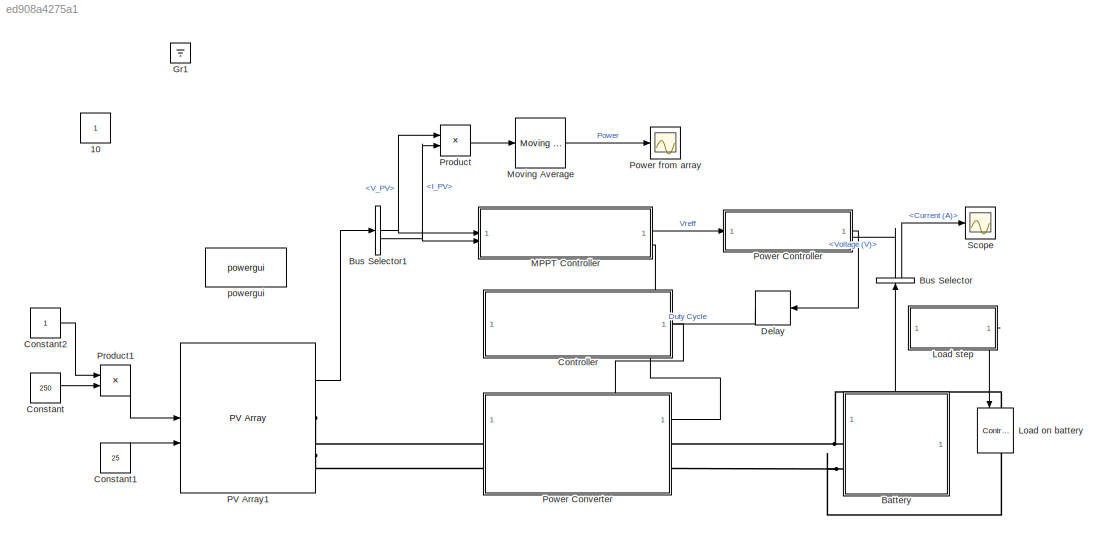
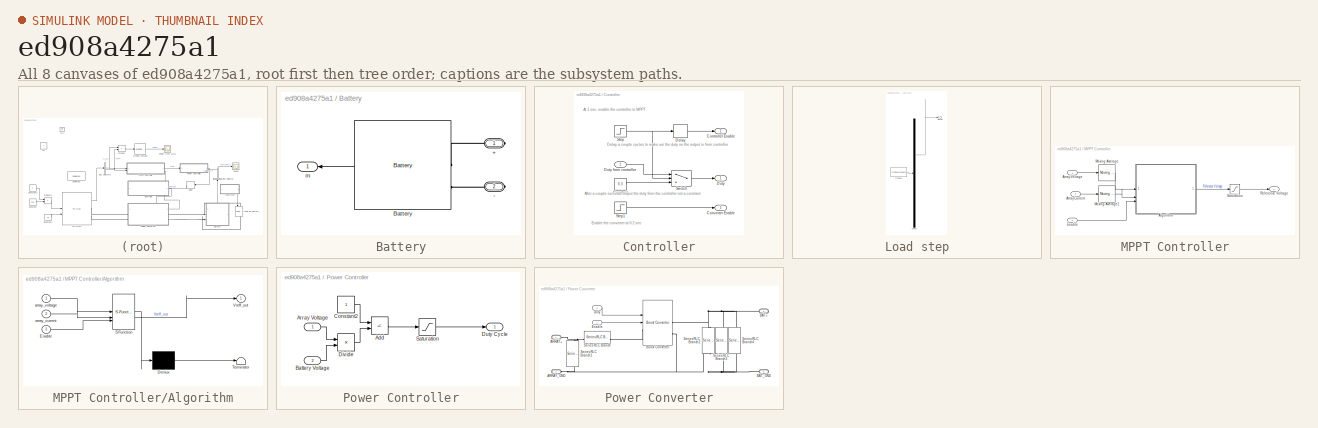
[diagram: thumbnail index - all 8 canvases of the model, root first then tree order]
MODEL slx_ed908a4275a1
KIND model
CONFIG AbsTol = 1e-3
CONFIG EnableMultiTasking = off
CONFIG FixedStep = auto
CONFIG MaxStep = auto
CONFIG MinStep = auto
CONFIG RelTol = 1e-3
CONFIG SampleTimeConstraint = Unconstrained
CONFIG SolverName = VariableStepAuto
CONFIG StartTime = 0.0
CONFIG StopTime = 60
WORKSPACE source: mxarray member
WORKSPACE Fsw = 40000
WORKSPACE Kc = 832.120994276
WORKSPACE batteryVoltage = 130
WORKSPACE deadTime = 5e-08
WORKSPACE wp = 45312.8685633
WORKSPACE wz = 3484.96300111
WORKSPACE zeroConductanceDef = 0.1
WORKSPACE zeroCurrentDef = 0.05
WORKSPACE zeroVoltageDef = 0.1
BLOCK [Constant] 10
  IOType = siggen
BLOCK [SubSystem] Battery
  PortSchema = {"entries":[{"content":{"sides":[{"content":{"connectorIds":[]},"type":"ConnectorPlacement.EquallySpacedRectSide","uuid":"681b39d9-76c9-4b82-8fbc-7b82f9fdea89"},{"content":{"connectorIds":["RConn1","RConn2"],"side":"RIGHT"},"type":"ConnectorPlacement.EquallySpacedRectSide","uuid":"fad72295-eee8-4844-9071-ef3ebf9b61ad"},{"content":{"connectorIds":["Out1"],"side":"TOP"},"type":"ConnectorPlacement.Eq...<+252ch>
BLOCK [PMIOPort] Battery/+
  NameLocation = top
  Side = Right
BLOCK [PMIOPort] Battery/-
  NameLocation = top
  Port = 2
  Side = Right
BLOCK [Reference] Battery/Battery  REF=spsBatteryLib/Battery
  SourceBlock = spsBatteryLib/Battery
  SourceType = Battery
BLOCK [Outport] Battery/m
  NameLocation = top
BLOCK [BusSelector] Bus Selector
  NameLocation = right
  OutputSignals = Voltage (V),Current (A)
BLOCK [BusSelector] Bus Selector1
  OutputSignals = V_PV,I_PV
BLOCK [Constant] Constant
  Value = 250
BLOCK [Constant] Constant1
  Value = 25
BLOCK [Constant] Constant2
BLOCK [SubSystem] Controller
  PortSchema = {"entries":[{"content":{"sides":[{"content":{"connectorIds":["Out2","Out3"]},"type":"ConnectorPlacement.EquallySpacedRectSide","uuid":"2bf71abb-c260-460f-90aa-ee90c2514789"},{"content":{"connectorIds":["In1","Out1"],"side":"RIGHT"},"type":"ConnectorPlacement.EquallySpacedRectSide","uuid":"98aef3cf-1e3e-4c29-bcc3-1b93ad6f6d73"},{"content":{"connectorIds":[],"side":"TOP"},"type":"ConnectorPlacement....<+254ch>
BLOCK [Constant] Controller/Constant
  Value = 0.3
BLOCK [Outport] Controller/Controller Enable
  Port = 2
BLOCK [Outport] Controller/Converter Enable
  Port = 3
BLOCK [Delay] Controller/Delay
  DelayLength = 10
  InputPortMap = u0
BLOCK [Outport] Controller/Duty
BLOCK [Inport] Controller/Duty from controller
BLOCK [Step] Controller/Step
  SampleTime = 0
BLOCK [Step] Controller/Step1
  After = 0
  Before = 1
  SampleTime = 0
  Time = 0.2
BLOCK [Switch] Controller/Switch
  Criteria = u2 > Threshold
  InputSameDT = off
  SaturateOnIntegerOverflow = off
  Threshold = 0.5
BLOCK [Delay] Delay
  InputPortMap = u0
  NameLocation = top
BLOCK [Ground] Gr1
  IOType = siggen
BLOCK [Reference] Load on battery  REF=spsControlledCurrentSourceLib/Controlled Current Source
  LibrarySourceBlock = sps_lib/Sources/Controlled Current Source
  NameLocation = right
  SourceBlock = spsControlledCurrentSourceLib/Controlled Current Source
  SourceType = Controlled Current Source
BLOCK [SubSystem] Load step
  ClipboardFcn = sigbuilder_block('clipboard');
  CloseFcn = sigbuilder_block('close');
  ContinueFcn = sigbuilder_block('continue');
  CopyFcn = sigbuilder_block('copy');
  DeleteFcn = sigbuilder_block('delete');
  LoadFcn = sigbuilder_block('load');
  MaskHideContents = on
  ModelCloseFcn = sigbuilder_block('modelClose');
  NameChangeFcn = sigbuilder_block('namechange');
  OpenFcn = sigbuilder_block('open',[440.25 198 550.5 399.75 ]);
  PauseFcn = sigbuilder_block('pause');
  PreSaveFcn = sigbuilder_block('preSave');
  StartFcn = sigbuilder_block('start');
  StopFcn = sigbuilder_block('stop');
  Tag = STV Subsys
BLOCK [Demux] Load step/Demux
  DisplayOption = none
  Outputs = 1
  Tag = STV Demux
BLOCK [FromWorkspace] Load step/FromWs
  Tag = STV FromWs
  VariableName = tuvar
BLOCK [Outport] Load step/Signal 1
  Tag = STV Outport
BLOCK [SubSystem] MPPT Controller
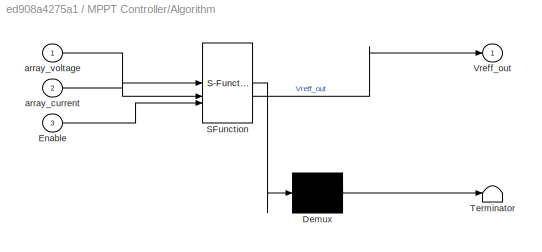
BLOCK [SubSystem] MPPT Controller/Algorithm
  ErrorFcn = Stateflow.Translate.translate
  PermitHierarchicalResolution = ExplicitOnly
  SFBlockType = MATLAB Function
  TreatAsAtomicUnit = on
BLOCK [Demux] MPPT Controller/Algorithm/ Demux 
  Outputs = 1
BLOCK [S-Function] MPPT Controller/Algorithm/ SFunction 
  EnableBusSupport = on
  FunctionName = sf_sfun
  PortCounts = [3 2]
  SFcnIsStateOwnerBlock = off
  SFunctionDeploymentMode = off
  Tag = Stateflow S-Function 2
BLOCK [Terminator] MPPT Controller/Algorithm/ Terminator 
BLOCK [Inport] MPPT Controller/Algorithm/Enable
  Port = 3
BLOCK [Outport] MPPT Controller/Algorithm/Vreff_out
BLOCK [Inport] MPPT Controller/Algorithm/array_current
  Port = 2
BLOCK [Inport] MPPT Controller/Algorithm/array_voltage
BLOCK [Inport] MPPT Controller/Array Current
  Port = 2
BLOCK [Inport] MPPT Controller/Array Voltage
BLOCK [Inport] MPPT Controller/Enable
  Port = 3
BLOCK [Reference] MPPT Controller/Moving Average  REF=dspstat3/Moving
Average
  SourceBlock = dspstat3/Moving\nAverage
  SourceType = dsp.simulink.MovingAverage
BLOCK [Reference] MPPT Controller/Moving Average1  REF=dspstat3/Moving
Average
  SourceBlock = dspstat3/Moving\nAverage
  SourceType = dsp.simulink.MovingAverage
BLOCK [Outport] MPPT Controller/Reference Voltage
BLOCK [Saturate] MPPT Controller/Saturation
  LowerLimit = 0
  UpperLimit = 100
BLOCK [Reference] Moving Average  REF=dspstat3/Moving
Average
  SourceBlock = dspstat3/Moving\nAverage
  SourceType = dsp.simulink.MovingAverage
BLOCK [Reference] PV Array1  REF=spsPVArrayLib/PV Array
  SourceBlock = spsPVArrayLib/PV Array
  SourceType = PV array
BLOCK [SubSystem] Power Controller
  PortSchema = {"entries":[{"content":{"sides":[{"content":{"connectorIds":["In1"]},"type":"ConnectorPlacement.EquallySpacedRectSide","uuid":"eba48d98-7e83-4e3f-b762-8418122e8e33"},{"content":{"connectorIds":["In2","Out1"],"side":"RIGHT"},"type":"ConnectorPlacement.EquallySpacedRectSide","uuid":"8bf8a633-4d87-4eab-b4cf-0c4a6a83ffe8"},{"content":{"connectorIds":[],"side":"TOP"},"type":"ConnectorPlacement.EquallyS...<+246ch>
BLOCK [Sum] Power Controller/Add
  IconShape = rectangular
  Inputs = +-
BLOCK [Inport] Power Controller/Array Voltage
BLOCK [Inport] Power Controller/Battery Voltage
  Port = 2
BLOCK [Constant] Power Controller/Constant2
BLOCK [Product] Power Controller/Divide
  Inputs = */
BLOCK [Outport] Power Controller/Duty Cycle
BLOCK [Saturate] Power Controller/Saturation
  LowerLimit = 0
  UpperLimit = 0.9
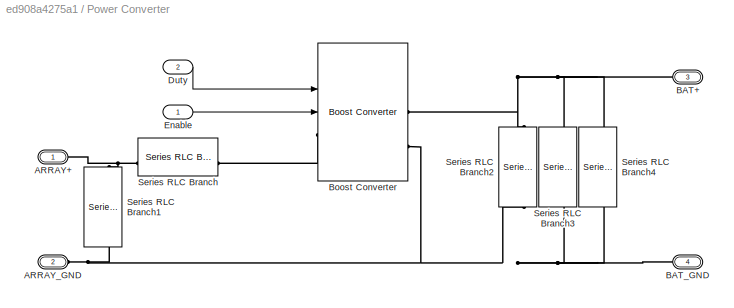
BLOCK [SubSystem] Power Converter
  PortSchema = {"entries":[{"content":{"sides":[{"content":{"connectorIds":["LConn1","LConn2"]},"type":"ConnectorPlacement.EquallySpacedRectSide","uuid":"952598fd-f1ec-4ba0-8b7a-c65c9797eeff"},{"content":{"connectorIds":["RConn1","RConn2"],"side":"RIGHT"},"type":"ConnectorPlacement.EquallySpacedRectSide","uuid":"a7adfdeb-ad62-4395-a0f0-2cb15f2f10ca"},{"content":{"connectorIds":["In1","In2"],"side":"TOP"},"type":...<+418ch>
BLOCK [PMIOPort] Power Converter/ARRAY+
  Side = Left
BLOCK [PMIOPort] Power Converter/ARRAY_GND
  Port = 2
  Side = Left
BLOCK [PMIOPort] Power Converter/BAT+
  NameLocation = top
  Port = 3
  Side = Right
BLOCK [PMIOPort] Power Converter/BAT_GND
  NameLocation = top
  Port = 4
  Side = Right
BLOCK [Reference] Power Converter/Boost Converter  REF=spsBoostConverterLib/Boost Converter
  LibrarySourceBlock = sps_lib/Power Electronics/Boost Converter
  SourceBlock = spsBoostConverterLib/Boost Converter
  SourceType = Boost Converter
BLOCK [Inport] Power Converter/Duty
  Port = 2
BLOCK [Inport] Power Converter/Enable
BLOCK [Reference] Power Converter/Series RLC Branch  REF=spsSeriesRLCBranchLib/Series RLC Branch
  SourceBlock = spsSeriesRLCBranchLib/Series RLC Branch
  SourceType = Series RLC Branch
BLOCK [Reference] Power Converter/Series RLC Branch1  REF=spsSeriesRLCBranchLib/Series RLC Branch
  NameLocation = left
  SourceBlock = spsSeriesRLCBranchLib/Series RLC Branch
  SourceType = Series RLC Branch
BLOCK [Reference] Power Converter/Series RLC Branch2  REF=spsSeriesRLCBranchLib/Series RLC Branch
  NameLocation = left
  SourceBlock = spsSeriesRLCBranchLib/Series RLC Branch
  SourceType = Series RLC Branch
BLOCK [Reference] Power Converter/Series RLC Branch3  REF=spsSeriesRLCBranchLib/Series RLC Branch
  NameLocation = left
  SourceBlock = spsSeriesRLCBranchLib/Series RLC Branch
  SourceType = Series RLC Branch
BLOCK [Reference] Power Converter/Series RLC Branch4  REF=spsSeriesRLCBranchLib/Series RLC Branch
  NameLocation = left
  SourceBlock = spsSeriesRLCBranchLib/Series RLC Branch
  SourceType = Series RLC Branch
BLOCK [Scope] Power from array
  Floating = off
  NumInputPorts = 1
  ScopeSpecificationString = Simulink.scopes.TimeScopeBlockCfg('CurrentConfiguration', extmgr.ConfigurationSet(extmgr.Configuration('Core','General UI',true),extmgr.Configuration('Core','Source UI',true),extmgr.Configuration('Sources','WiredSimulink',true),extmgr.Configuration('Visuals','Time Domain',true,'SerializedDisplays',{struct('MinYLimReal','-3546.37287','MaxYLimReal','484.60809','YLabelReal','','MinYLimMag','  0.00000...<+1345ch>
BLOCK [Product] Product
BLOCK [Product] Product1
BLOCK [Scope] Scope
  Floating = off
  NumInputPorts = 1
  ScopeSpecificationString = Simulink.scopes.TimeScopeBlockCfg('CurrentConfiguration', extmgr.ConfigurationSet(extmgr.Configuration('Core','General UI',true),extmgr.Configuration('Core','Source UI',true),extmgr.Configuration('Sources','WiredSimulink',true,'DataLoggingVariableName','ScopeData1'),extmgr.Configuration('Visuals','Time Domain',true,'SerializedDisplays',{struct('MinYLimReal','-12388.19645','MaxYLimReal','7981.12471...<+1400ch>
BLOCK [Reference] powergui  REF=spspowerguiLib/powergui
  Priority = 1
  SourceBlock = spspowerguiLib/powergui
  SourceType = PSB option menu block
ANNOTATION Controller: After a couple seconds output the duty from the controller not a constant
ANNOTATION Controller: At 1 sec, enable the controller to MPPT
ANNOTATION Controller: Delay a couple cycles to make ure the duty on the output is from controller
ANNOTATION Controller: Enable the converter at 0.2 sec
LINE Battery/Battery:1 -> Battery/m:1
LINE Battery:1 -> Bus Selector:1
NET Bus Selector1:1 -> MPPT Controller:1, Product:1
NET Bus Selector1:2 -> MPPT Controller:2, Product:2
LINE Bus Selector:1 -> Power Controller:2
LINE Bus Selector:2 -> Scope:1
LINE Constant1:1 -> PV Array1:2
LINE Constant2:1 -> Product1:1
LINE Constant:1 -> Product1:2
LINE Controller/Constant:1 -> Controller/Switch:3
LINE Controller/Delay:1 -> Controller/Controller Enable:1
LINE Controller/Duty from controller:1 -> Controller/Switch:1
LINE Controller/Step1:1 -> Controller/Converter Enable:1
NET Controller/Step:1 -> Controller/Delay:1, Controller/Switch:2
LINE Controller/Switch:1 -> Controller/Duty:1
LINE Controller:1 -> Power Converter:2
LINE Controller:2 -> MPPT Controller:3
LINE Controller:3 -> Power Converter:1
LINE Delay:1 -> Controller:1
LINE Load step:1 -> Load on battery:1
LINE MPPT Controller/Algorithm:1 -> MPPT Controller/Saturation:1
LINE MPPT Controller/Array Current:1 -> MPPT Controller/Moving Average1:1
LINE MPPT Controller/Array Voltage:1 -> MPPT Controller/Moving Average:1
LINE MPPT Controller/Enable:1 -> MPPT Controller/Algorithm:3
LINE MPPT Controller/Moving Average1:1 -> MPPT Controller/Algorithm:2
LINE MPPT Controller/Moving Average:1 -> MPPT Controller/Algorithm:1
LINE MPPT Controller/Saturation:1 -> MPPT Controller/Reference Voltage:1
LINE MPPT Controller:1 -> Power Controller:1
LINE Moving Average:1 -> Power from array:1
LINE PV Array1:1 -> Bus Selector1:1
LINE Power Controller/Add:1 -> Power Controller/Saturation:1
LINE Power Controller/Array Voltage:1 -> Power Controller/Divide:1
LINE Power Controller/Battery Voltage:1 -> Power Controller/Divide:2
LINE Power Controller/Constant2:1 -> Power Controller/Add:1
LINE Power Controller/Divide:1 -> Power Controller/Add:2
LINE Power Controller/Saturation:1 -> Power Controller/Duty Cycle:1
LINE Power Controller:1 -> Delay:1
LINE Power Converter/Duty:1 -> Power Converter/Boost Converter:1
LINE Power Converter/Enable:1 -> Power Converter/Boost Converter:2
LINE Product1:1 -> PV Array1:1
LINE Product:1 -> Moving Average:1
PLINE Battery/+:RConn1 -- Battery/Battery:LConn1
PLINE Battery/-:RConn1 -- Battery/Battery:LConn2
PNET net1: Battery:RConn1 -- Load on battery:LConn1 -- Power Converter:RConn1
PNET net2: Battery:RConn2 -- Load on battery:RConn1 -- Power Converter:RConn2
PLINE PV Array1:RConn1 -- Power Converter:LConn1
PLINE PV Array1:RConn2 -- Power Converter:LConn2
PNET net3: Power Converter/ARRAY+:RConn1 -- Power Converter/Series RLC Branch1:LConn1 -- Power Converter/Series RLC Branch:LConn1
PNET net4: Power Converter/ARRAY_GND:RConn1 -- Power Converter/BAT_GND:RConn1 -- Power Converter/Boost Converter:RConn2 -- Power Converter/Series RLC Branch1:RConn1 -- Power Converter/Series RLC Branch2:RConn1 -- Power Converter/Series RLC Branch3:RConn1 -- Power Converter/Series RLC Branch4:RConn1
PNET net5: Power Converter/BAT+:RConn1 -- Power Converter/Boost Converter:RConn1 -- Power Converter/Series RLC Branch2:LConn1 -- Power Converter/Series RLC Branch3:LConn1 -- Power Converter/Series RLC Branch4:LConn1
PLINE Power Converter/Boost Converter:LConn1 -- Power Converter/Series RLC Branch:RConn1
note: NET lines group one-source signal fan-out (src -> all destinations, sorted); 1:1 wires keep LINE; PNET lines group multi-terminal physical nets as a canonical sorted terminal list (undirected conserving connections); 2-terminal nets keep the pairwise PLINE form
CHART MPPT Controller/Algorithm states=1 transitions=1
  STATE_LABEL 'eML_blk_kernel()'
  STATE_LABEL 'SCRIPT:\nfunction Vreff_out = mppt(array_voltage, array_current, Enable)\n\n\nperterbAmount = 0.1;\n\npersistent Vreff;\n% persistent prevMaxPowerPointVoltage;\n% persistent prevMaxPowerPointCurrent;\n% \n% persistent zeroVoltageTolerance;\n% persistent zeroCurrentTolerance;\n% persistent zeroConductanceTolerance;\n\npersistent prevVoltage;\npersistent prevPower;\npersistent direction;\n\n\nif isempty(Vreff)\n    Vre...<+2008ch>'
CHART  states=0 transitions=0
